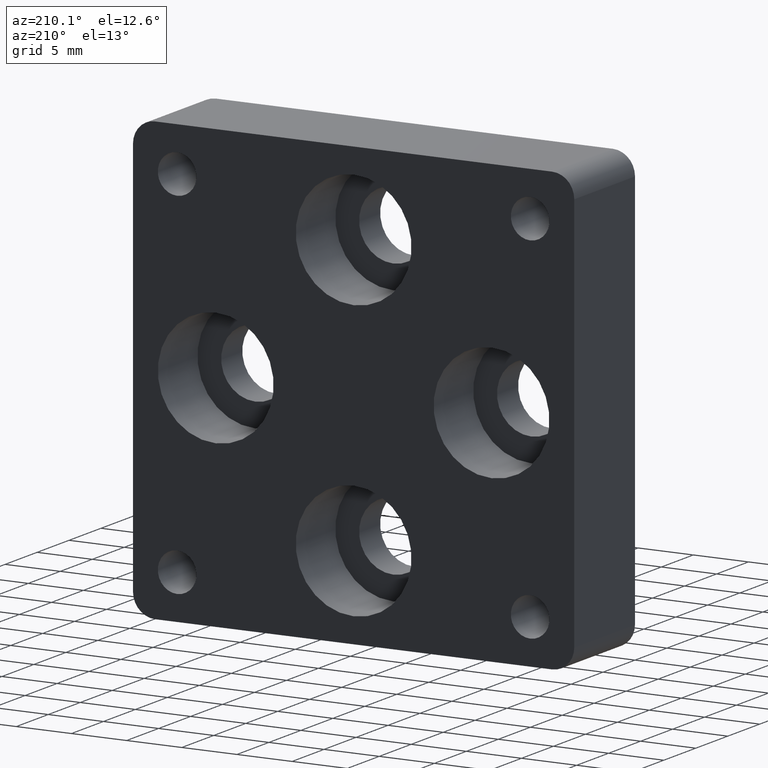
[diagram: clean part render]
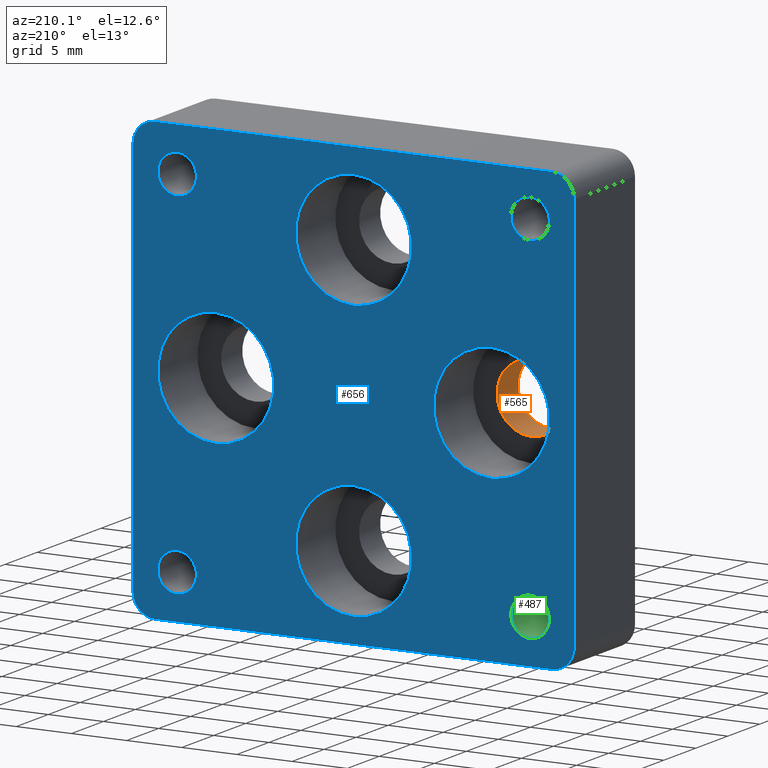
[diagram: same view with three faces highlighted in distinct colors, each labeled with its STEP entity id]
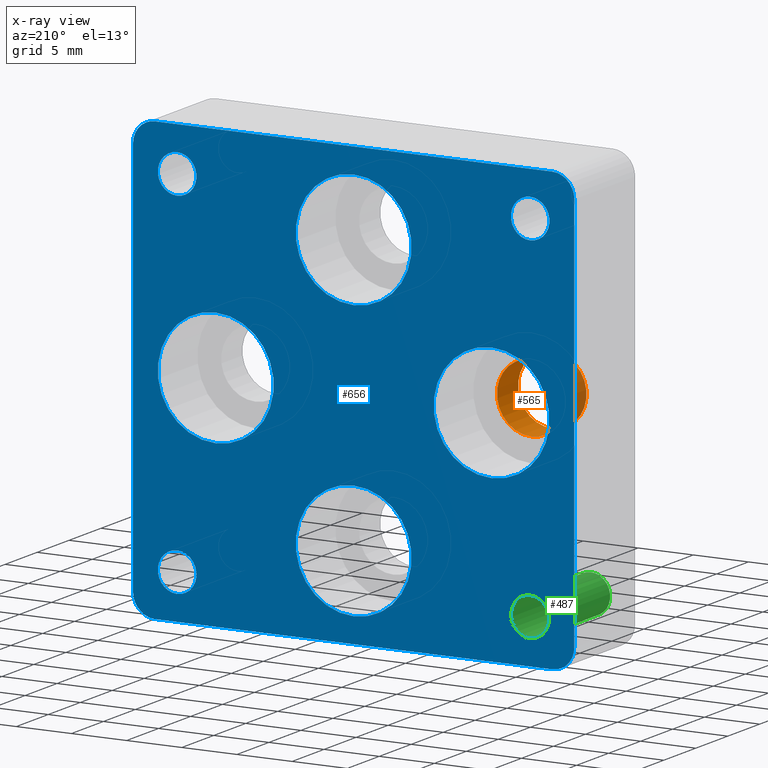
[diagram: x-ray of the same camera — body ghosted, the three highlighted faces saturated]
A machine part, auxiliary view with three faces highlighted in distinct colors.
The next image is the same camera in x-ray (body ghosted, the three faces saturated) — at least one of them is partly hidden behind the body in this view.
Their STEP definitions:

[orange] entity #565 — the highlighted cylindrical surface (bore or boss wall) has radius 3.1 mm, axis along (-0, -1, -0).
#25 = AXIS2_PLACEMENT_3D ( 'NONE', #557, #748, #488 ) ;
#103 = VERTEX_POINT ( 'NONE', #746 ) ;
#179 = AXIS2_PLACEMENT_3D ( 'NONE', #458, #462, #274 ) ;
#183 = CARTESIAN_POINT ( 'NONE',  ( -12.49999999999999822, 3.299999999999999822, 3.100000000000000533 ) ) ;
#255 = ORIENTED_EDGE ( 'NONE', *, *, #279, .F. ) ;
#273 = CIRCLE ( 'NONE', #673, 3.100000000000000533 ) ;
#274 = DIRECTION ( 'NONE',  ( 0.000000000000000000, 0.000000000000000000, 1.000000000000000000 ) ) ;
#279 = EDGE_CURVE ( 'NONE', #103, #103, #507, .T. ) ;
#303 = FACE_OUTER_BOUND ( 'NONE', #403, .T. ) ;
#344 = DIRECTION ( 'NONE',  ( 0.000000000000000000, 0.000000000000000000, 1.000000000000000000 ) ) ;
#403 = EDGE_LOOP ( 'NONE', ( #255 ) ) ;
#423 = CYLINDRICAL_SURFACE ( 'NONE', #25, 3.100000000000000533 ) ;
#458 = CARTESIAN_POINT ( 'NONE',  ( -12.49999999999999822, 0.000000000000000000, 0.000000000000000000 ) ) ;
#462 = DIRECTION ( 'NONE',  ( 0.000000000000000000, 1.000000000000000000, 0.000000000000000000 ) ) ;
#478 = ORIENTED_EDGE ( 'NONE', *, *, #733, .T. ) ;
#484 = FACE_OUTER_BOUND ( 'NONE', #662, .T. ) ;
#488 = DIRECTION ( 'NONE',  ( 0.000000000000000000, 0.000000000000000000, -1.000000000000000000 ) ) ;
#507 = CIRCLE ( 'NONE', #179, 3.100000000000000533 ) ;
#557 = CARTESIAN_POINT ( 'NONE',  ( -12.49999999999999822, 9.500000000000000000, 0.000000000000000000 ) ) ;
#565 = ADVANCED_FACE ( 'NONE', ( #303, #484 ), #423, .F. ) ;
#569 = VERTEX_POINT ( 'NONE', #183 ) ;
#647 = DIRECTION ( 'NONE',  ( 0.000000000000000000, 1.000000000000000000, 0.000000000000000000 ) ) ;
#662 = EDGE_LOOP ( 'NONE', ( #478 ) ) ;
#673 = AXIS2_PLACEMENT_3D ( 'NONE', #712, #647, #344 ) ;
#712 = CARTESIAN_POINT ( 'NONE',  ( -12.49999999999999822, 3.299999999999999822, 0.000000000000000000 ) ) ;
#733 = EDGE_CURVE ( 'NONE', #569, #569, #273, .T. ) ;
#746 = CARTESIAN_POINT ( 'NONE',  ( -12.49999999999999822, 0.000000000000000000, 3.100000000000000533 ) ) ;
#748 = DIRECTION ( 'NONE',  ( -0.000000000000000000, -1.000000000000000000, -0.000000000000000000 ) ) ;

[blue] entity #656 — the highlighted planar face has unit normal (0, -1, 0).
#4 = EDGE_CURVE ( 'NONE', #119, #119, #726, .T. ) ;
#6 = CARTESIAN_POINT ( 'NONE',  ( -18.00000000000000355, 9.500000000000000000, -19.99999999999998579 ) ) ;
#14 = ORIENTED_EDGE ( 'NONE', *, *, #250, .T. ) ;
#21 = AXIS2_PLACEMENT_3D ( 'NONE', #631, #380, #76 ) ;
#26 = FACE_BOUND ( 'NONE', #725, .T. ) ;
#36 = AXIS2_PLACEMENT_3D ( 'NONE', #198, #83, #443 ) ;
#45 = CARTESIAN_POINT ( 'NONE',  ( 16.00000000000000000, 9.500000000000000000, -16.00000000000000000 ) ) ;
#48 = CIRCLE ( 'NONE', #244, 2.000000000000001776 ) ;
#49 = AXIS2_PLACEMENT_3D ( 'NONE', #341, #256, #270 ) ;
#55 = VERTEX_POINT ( 'NONE', #759 ) ;
#56 = EDGE_CURVE ( 'NONE', #55, #645, #48, .T. ) ;
#57 = CARTESIAN_POINT ( 'NONE',  ( -16.00000000000000000, 9.500000000000000000, 16.00000000000000000 ) ) ;
#63 = VERTEX_POINT ( 'NONE', #445 ) ;
#64 = DIRECTION ( 'NONE',  ( 0.000000000000000000, 0.000000000000000000, -1.000000000000000000 ) ) ;
#65 = CARTESIAN_POINT ( 'NONE',  ( -16.00000000000000000, 9.500000000000000000, -14.25000000000000000 ) ) ;
#76 = DIRECTION ( 'NONE',  ( 0.000000000000000000, 0.000000000000000000, 1.000000000000000000 ) ) ;
#83 = DIRECTION ( 'NONE',  ( -0.000000000000000000, 1.000000000000000000, -0.000000000000000000 ) ) ;
#84 = ORIENTED_EDGE ( 'NONE', *, *, #757, .F. ) ;
#87 = FACE_OUTER_BOUND ( 'NONE', #525, .T. ) ;
#100 = CIRCLE ( 'NONE', #197, 1.750000000000001554 ) ;
#107 = ORIENTED_EDGE ( 'NONE', *, *, #747, .T. ) ;
#109 = DIRECTION ( 'NONE',  ( 0.000000000000000000, 1.000000000000000000, 0.000000000000000000 ) ) ;
#119 = VERTEX_POINT ( 'NONE', #363 ) ;
#126 = DIRECTION ( 'NONE',  ( -0.000000000000000000, 1.000000000000000000, -0.000000000000000000 ) ) ;
#129 = DIRECTION ( 'NONE',  ( 0.000000000000000000, 0.000000000000000000, 1.000000000000000000 ) ) ;
#161 = AXIS2_PLACEMENT_3D ( 'NONE', #308, #249, #129 ) ;
#164 = DIRECTION ( 'NONE',  ( -1.000000000000000000, -0.000000000000000000, 3.469446951953614189E-16 ) ) ;
#165 = VERTEX_POINT ( 'NONE', #238 ) ;
#171 = AXIS2_PLACEMENT_3D ( 'NONE', #45, #109, #672 ) ;
#180 = LINE ( 'NONE', #435, #615 ) ;
#190 = EDGE_LOOP ( 'NONE', ( #210 ) ) ;
#194 = CARTESIAN_POINT ( 'NONE',  ( -17.99999999999998934, 9.500000000000000000, 20.00000000000000355 ) ) ;
#197 = AXIS2_PLACEMENT_3D ( 'NONE', #57, #623, #691 ) ;
#198 = CARTESIAN_POINT ( 'NONE',  ( -18.00000000000000355, 9.500000000000000000, -17.99999999999998934 ) ) ;
#199 = EDGE_LOOP ( 'NONE', ( #470 ) ) ;
#207 = CARTESIAN_POINT ( 'NONE',  ( 18.00000000000000711, 9.500000000000000000, -18.00000000000000355 ) ) ;
#208 = AXIS2_PLACEMENT_3D ( 'NONE', #408, #543, #228 ) ;
#209 = DIRECTION ( 'NONE',  ( -0.000000000000000000, 1.000000000000000000, -0.000000000000000000 ) ) ;
#210 = ORIENTED_EDGE ( 'NONE', *, *, #638, .F. ) ;
#213 = ORIENTED_EDGE ( 'NONE', *, *, #4, .F. ) ;
#214 = CARTESIAN_POINT ( 'NONE',  ( 0.000000000000000000, 9.500000000000000000, -12.50000000000000000 ) ) ;
#218 = EDGE_CURVE ( 'NONE', #645, #493, #779, .T. ) ;
#219 = DIRECTION ( 'NONE',  ( 0.000000000000000000, 1.000000000000000000, 0.000000000000000000 ) ) ;
#221 = VECTOR ( 'NONE', #727, 1000.000000000000000 ) ;
#223 = CARTESIAN_POINT ( 'NONE',  ( 16.00000000000000000, 9.500000000000000000, 17.75000000000000355 ) ) ;
#224 = EDGE_LOOP ( 'NONE', ( #84 ) ) ;
#228 = DIRECTION ( 'NONE',  ( 0.000000000000000000, 0.000000000000000000, 1.000000000000000000 ) ) ;
#238 = CARTESIAN_POINT ( 'NONE',  ( -20.00000000000000000, 9.500000000000000000, -17.99999999999998934 ) ) ;
#243 = CIRCLE ( 'NONE', #340, 1.999999999999998224 ) ;
#244 = AXIS2_PLACEMENT_3D ( 'NONE', #248, #126, #64 ) ;
#248 = CARTESIAN_POINT ( 'NONE',  ( -17.99999999999998934, 9.500000000000000000, 18.00000000000000355 ) ) ;
#249 = DIRECTION ( 'NONE',  ( 0.000000000000000000, 1.000000000000000000, 0.000000000000000000 ) ) ;
#250 = EDGE_CURVE ( 'NONE', #418, #676, #492, .T. ) ;
#256 = DIRECTION ( 'NONE',  ( 0.000000000000000000, 1.000000000000000000, 0.000000000000000000 ) ) ;
#259 = FACE_BOUND ( 'NONE', #667, .T. ) ;
#265 = FACE_BOUND ( 'NONE', #451, .T. ) ;
#270 = DIRECTION ( 'NONE',  ( 0.000000000000000000, 0.000000000000000000, 1.000000000000000000 ) ) ;
#275 = AXIS2_PLACEMENT_3D ( 'NONE', #687, #553, #420 ) ;
#277 = LINE ( 'NONE', #422, #480 ) ;
#291 = ORIENTED_EDGE ( 'NONE', *, *, #546, .T. ) ;
#299 = AXIS2_PLACEMENT_3D ( 'NONE', #214, #219, #552 ) ;
#301 = AXIS2_PLACEMENT_3D ( 'NONE', #207, #776, #444 ) ;
#308 = CARTESIAN_POINT ( 'NONE',  ( 0.000000000000000000, 9.500000000000000000, 12.50000000000000000 ) ) ;
#313 = EDGE_CURVE ( 'NONE', #797, #797, #614, .T. ) ;
#317 = VERTEX_POINT ( 'NONE', #324 ) ;
#318 = DIRECTION ( 'NONE',  ( 0.000000000000000000, -1.000000000000000000, 0.000000000000000000 ) ) ;
#324 = CARTESIAN_POINT ( 'NONE',  ( -12.49999999999999822, 9.500000000000000000, 5.250000000000000000 ) ) ;
#326 = FACE_BOUND ( 'NONE', #224, .T. ) ;
#332 = DIRECTION ( 'NONE',  ( 1.000000000000000000, 0.000000000000000000, -8.673617379884037937E-17 ) ) ;
#335 = FACE_BOUND ( 'NONE', #775, .T. ) ;
#338 = CARTESIAN_POINT ( 'NONE',  ( -19.99999999999998579, 9.500000000000000000, 20.00000000000000355 ) ) ;
#340 = AXIS2_PLACEMENT_3D ( 'NONE', #450, #209, #771 ) ;
#341 = CARTESIAN_POINT ( 'NONE',  ( 16.00000000000000000, 9.500000000000000000, 16.00000000000000000 ) ) ;
#346 = ORIENTED_EDGE ( 'NONE', *, *, #56, .T. ) ;
#348 = ORIENTED_EDGE ( 'NONE', *, *, #313, .F. ) ;
#350 = ORIENTED_EDGE ( 'NONE', *, *, #467, .F. ) ;
#363 = CARTESIAN_POINT ( 'NONE',  ( 16.00000000000000000, 9.500000000000000000, -14.25000000000000000 ) ) ;
#373 = VERTEX_POINT ( 'NONE', #750 ) ;
#380 = DIRECTION ( 'NONE',  ( 0.000000000000000000, 1.000000000000000000, 0.000000000000000000 ) ) ;
#398 = EDGE_CURVE ( 'NONE', #63, #63, #741, .T. ) ;
#408 = CARTESIAN_POINT ( 'NONE',  ( 12.50000000000000178, 9.500000000000000000, -3.061616997868383043E-15 ) ) ;
#418 = VERTEX_POINT ( 'NONE', #479 ) ;
#420 = DIRECTION ( 'NONE',  ( 0.000000000000000000, 0.000000000000000000, 1.000000000000000000 ) ) ;
#422 = CARTESIAN_POINT ( 'NONE',  ( -20.00000000000000000, 9.500000000000000000, -19.99999999999998579 ) ) ;
#430 = CARTESIAN_POINT ( 'NONE',  ( -16.00000000000000000, 9.500000000000000000, 17.75000000000000355 ) ) ;
#435 = CARTESIAN_POINT ( 'NONE',  ( 20.00000000000000000, 9.500000000000000000, 20.00000000000000000 ) ) ;
#438 = CIRCLE ( 'NONE', #21, 5.250000000000000000 ) ;
#440 = EDGE_CURVE ( 'NONE', #628, #628, #804, .T. ) ;
#443 = DIRECTION ( 'NONE',  ( 0.000000000000000000, 0.000000000000000000, -1.000000000000000000 ) ) ;
#444 = DIRECTION ( 'NONE',  ( 0.000000000000000000, 0.000000000000000000, -1.000000000000000000 ) ) ;
#445 = CARTESIAN_POINT ( 'NONE',  ( 12.50000000000000178, 9.500000000000000000, 5.249999999999995559 ) ) ;
#447 = FACE_BOUND ( 'NONE', #624, .T. ) ;
#450 = CARTESIAN_POINT ( 'NONE',  ( 18.00000000000000355, 9.500000000000000000, 18.00000000000000000 ) ) ;
#451 = EDGE_LOOP ( 'NONE', ( #762 ) ) ;
#455 = PLANE ( 'NONE',  #802 ) ;
#461 = ORIENTED_EDGE ( 'NONE', *, *, #795, .T. ) ;
#467 = EDGE_CURVE ( 'NONE', #686, #686, #100, .T. ) ;
#470 = ORIENTED_EDGE ( 'NONE', *, *, #498, .F. ) ;
#479 = CARTESIAN_POINT ( 'NONE',  ( 20.00000000000000000, 9.500000000000000000, -18.00000000000000711 ) ) ;
#480 = VECTOR ( 'NONE', #164, 1000.000000000000000 ) ;
#486 = VERTEX_POINT ( 'NONE', #621 ) ;
#492 = CIRCLE ( 'NONE', #301, 2.000000000000001776 ) ;
#493 = VERTEX_POINT ( 'NONE', #807 ) ;
#498 = EDGE_CURVE ( 'NONE', #486, #486, #770, .T. ) ;
#502 = VERTEX_POINT ( 'NONE', #6 ) ;
#505 = CIRCLE ( 'NONE', #299, 5.250000000000000000 ) ;
#514 = CARTESIAN_POINT ( 'NONE',  ( 0.000000000000000000, 9.500000000000000000, 0.000000000000000000 ) ) ;
#524 = FACE_BOUND ( 'NONE', #199, .T. ) ;
#525 = EDGE_LOOP ( 'NONE', ( #291, #14, #107, #799, #461, #346, #791, #594 ) ) ;
#543 = DIRECTION ( 'NONE',  ( 0.000000000000000000, 1.000000000000000000, 0.000000000000000000 ) ) ;
#546 = EDGE_CURVE ( 'NONE', #735, #418, #180, .T. ) ;
#551 = VECTOR ( 'NONE', #332, 1000.000000000000000 ) ;
#552 = DIRECTION ( 'NONE',  ( 0.000000000000000000, 0.000000000000000000, 1.000000000000000000 ) ) ;
#553 = DIRECTION ( 'NONE',  ( 0.000000000000000000, 1.000000000000000000, 0.000000000000000000 ) ) ;
#556 = CARTESIAN_POINT ( 'NONE',  ( 20.00000000000000000, 9.500000000000000000, 18.00000000000000000 ) ) ;
#579 = FACE_BOUND ( 'NONE', #190, .T. ) ;
#594 = ORIENTED_EDGE ( 'NONE', *, *, #651, .T. ) ;
#601 = CIRCLE ( 'NONE', #36, 2.000000000000001776 ) ;
#605 = EDGE_CURVE ( 'NONE', #502, #165, #601, .T. ) ;
#614 = CIRCLE ( 'NONE', #49, 1.750000000000001554 ) ;
#615 = VECTOR ( 'NONE', #696, 1000.000000000000000 ) ;
#621 = CARTESIAN_POINT ( 'NONE',  ( 0.000000000000000000, 9.500000000000000000, 17.75000000000000355 ) ) ;
#623 = DIRECTION ( 'NONE',  ( 0.000000000000000000, 1.000000000000000000, 0.000000000000000000 ) ) ;
#624 = EDGE_LOOP ( 'NONE', ( #350 ) ) ;
#628 = VERTEX_POINT ( 'NONE', #65 ) ;
#631 = CARTESIAN_POINT ( 'NONE',  ( -12.49999999999999822, 9.500000000000000000, 0.000000000000000000 ) ) ;
#638 = EDGE_CURVE ( 'NONE', #317, #317, #438, .T. ) ;
#639 = CARTESIAN_POINT ( 'NONE',  ( -19.99999999999998579, 9.500000000000000000, 20.00000000000000355 ) ) ;
#645 = VERTEX_POINT ( 'NONE', #194 ) ;
#651 = EDGE_CURVE ( 'NONE', #493, #735, #243, .T. ) ;
#656 = ADVANCED_FACE ( 'NONE', ( #326, #265, #524, #579, #87, #26, #259, #447, #335 ), #455, .F. ) ;
#665 = LINE ( 'NONE', #338, #221 ) ;
#667 = EDGE_LOOP ( 'NONE', ( #213 ) ) ;
#672 = DIRECTION ( 'NONE',  ( 0.000000000000000000, 0.000000000000000000, 1.000000000000000000 ) ) ;
#676 = VERTEX_POINT ( 'NONE', #765 ) ;
#686 = VERTEX_POINT ( 'NONE', #430 ) ;
#687 = CARTESIAN_POINT ( 'NONE',  ( -16.00000000000000000, 9.500000000000000000, -16.00000000000000000 ) ) ;
#688 = ORIENTED_EDGE ( 'NONE', *, *, #440, .F. ) ;
#691 = DIRECTION ( 'NONE',  ( 0.000000000000000000, 0.000000000000000000, 1.000000000000000000 ) ) ;
#696 = DIRECTION ( 'NONE',  ( 0.000000000000000000, 0.000000000000000000, -1.000000000000000000 ) ) ;
#725 = EDGE_LOOP ( 'NONE', ( #688 ) ) ;
#726 = CIRCLE ( 'NONE', #171, 1.749999999999999778 ) ;
#727 = DIRECTION ( 'NONE',  ( 3.469446951953614682E-16, -0.000000000000000000, 1.000000000000000000 ) ) ;
#735 = VERTEX_POINT ( 'NONE', #556 ) ;
#741 = CIRCLE ( 'NONE', #208, 5.249999999999998224 ) ;
#747 = EDGE_CURVE ( 'NONE', #676, #502, #277, .T. ) ;
#750 = CARTESIAN_POINT ( 'NONE',  ( 0.000000000000000000, 9.500000000000000000, -7.250000000000000000 ) ) ;
#757 = EDGE_CURVE ( 'NONE', #373, #373, #505, .T. ) ;
#759 = CARTESIAN_POINT ( 'NONE',  ( -19.99999999999998579, 9.500000000000000000, 18.00000000000000355 ) ) ;
#762 = ORIENTED_EDGE ( 'NONE', *, *, #398, .F. ) ;
#765 = CARTESIAN_POINT ( 'NONE',  ( 18.00000000000000711, 9.500000000000000000, -20.00000000000000000 ) ) ;
#770 = CIRCLE ( 'NONE', #161, 5.250000000000000888 ) ;
#771 = DIRECTION ( 'NONE',  ( 0.000000000000000000, 0.000000000000000000, -1.000000000000000000 ) ) ;
#774 = DIRECTION ( 'NONE',  ( 0.000000000000000000, -0.000000000000000000, -1.000000000000000000 ) ) ;
#775 = EDGE_LOOP ( 'NONE', ( #348 ) ) ;
#776 = DIRECTION ( 'NONE',  ( -0.000000000000000000, 1.000000000000000000, -0.000000000000000000 ) ) ;
#779 = LINE ( 'NONE', #639, #551 ) ;
#791 = ORIENTED_EDGE ( 'NONE', *, *, #218, .T. ) ;
#795 = EDGE_CURVE ( 'NONE', #165, #55, #665, .T. ) ;
#797 = VERTEX_POINT ( 'NONE', #223 ) ;
#799 = ORIENTED_EDGE ( 'NONE', *, *, #605, .T. ) ;
#802 = AXIS2_PLACEMENT_3D ( 'NONE', #514, #318, #774 ) ;
#804 = CIRCLE ( 'NONE', #275, 1.749999999999999778 ) ;
#807 = CARTESIAN_POINT ( 'NONE',  ( 18.00000000000000711, 9.500000000000000000, 20.00000000000000000 ) ) ;

[green] entity #487 — the highlighted cylindrical surface (bore or boss wall) has radius 1.75 mm, axis along (-0, -1, -0).
#32 = EDGE_CURVE ( 'NONE', #285, #285, #641, .T. ) ;
#43 = ORIENTED_EDGE ( 'NONE', *, *, #440, .T. ) ;
#65 = CARTESIAN_POINT ( 'NONE',  ( -16.00000000000000000, 9.500000000000000000, -14.25000000000000000 ) ) ;
#66 = DIRECTION ( 'NONE',  ( 0.000000000000000000, 0.000000000000000000, -1.000000000000000000 ) ) ;
#81 = EDGE_LOOP ( 'NONE', ( #43 ) ) ;
#117 = DIRECTION ( 'NONE',  ( -0.000000000000000000, -1.000000000000000000, -0.000000000000000000 ) ) ;
#176 = CYLINDRICAL_SURFACE ( 'NONE', #302, 1.750000000000001554 ) ;
#233 = AXIS2_PLACEMENT_3D ( 'NONE', #548, #745, #369 ) ;
#275 = AXIS2_PLACEMENT_3D ( 'NONE', #687, #553, #420 ) ;
#285 = VERTEX_POINT ( 'NONE', #598 ) ;
#302 = AXIS2_PLACEMENT_3D ( 'NONE', #560, #117, #66 ) ;
#369 = DIRECTION ( 'NONE',  ( 0.000000000000000000, 0.000000000000000000, 1.000000000000000000 ) ) ;
#420 = DIRECTION ( 'NONE',  ( 0.000000000000000000, 0.000000000000000000, 1.000000000000000000 ) ) ;
#427 = FACE_OUTER_BOUND ( 'NONE', #81, .T. ) ;
#440 = EDGE_CURVE ( 'NONE', #628, #628, #804, .T. ) ;
#487 = ADVANCED_FACE ( 'NONE', ( #427, #549 ), #176, .F. ) ;
#548 = CARTESIAN_POINT ( 'NONE',  ( -16.00000000000000000, 0.000000000000000000, -16.00000000000000000 ) ) ;
#549 = FACE_OUTER_BOUND ( 'NONE', #576, .T. ) ;
#553 = DIRECTION ( 'NONE',  ( 0.000000000000000000, 1.000000000000000000, 0.000000000000000000 ) ) ;
#560 = CARTESIAN_POINT ( 'NONE',  ( -16.00000000000000000, 9.500000000000000000, -16.00000000000000000 ) ) ;
#576 = EDGE_LOOP ( 'NONE', ( #692 ) ) ;
#598 = CARTESIAN_POINT ( 'NONE',  ( -16.00000000000000000, 0.000000000000000000, -14.25000000000000000 ) ) ;
#628 = VERTEX_POINT ( 'NONE', #65 ) ;
#641 = CIRCLE ( 'NONE', #233, 1.749999999999999778 ) ;
#687 = CARTESIAN_POINT ( 'NONE',  ( -16.00000000000000000, 9.500000000000000000, -16.00000000000000000 ) ) ;
#692 = ORIENTED_EDGE ( 'NONE', *, *, #32, .F. ) ;
#745 = DIRECTION ( 'NONE',  ( 0.000000000000000000, 1.000000000000000000, 0.000000000000000000 ) ) ;
#804 = CIRCLE ( 'NONE', #275, 1.749999999999999778 ) ;